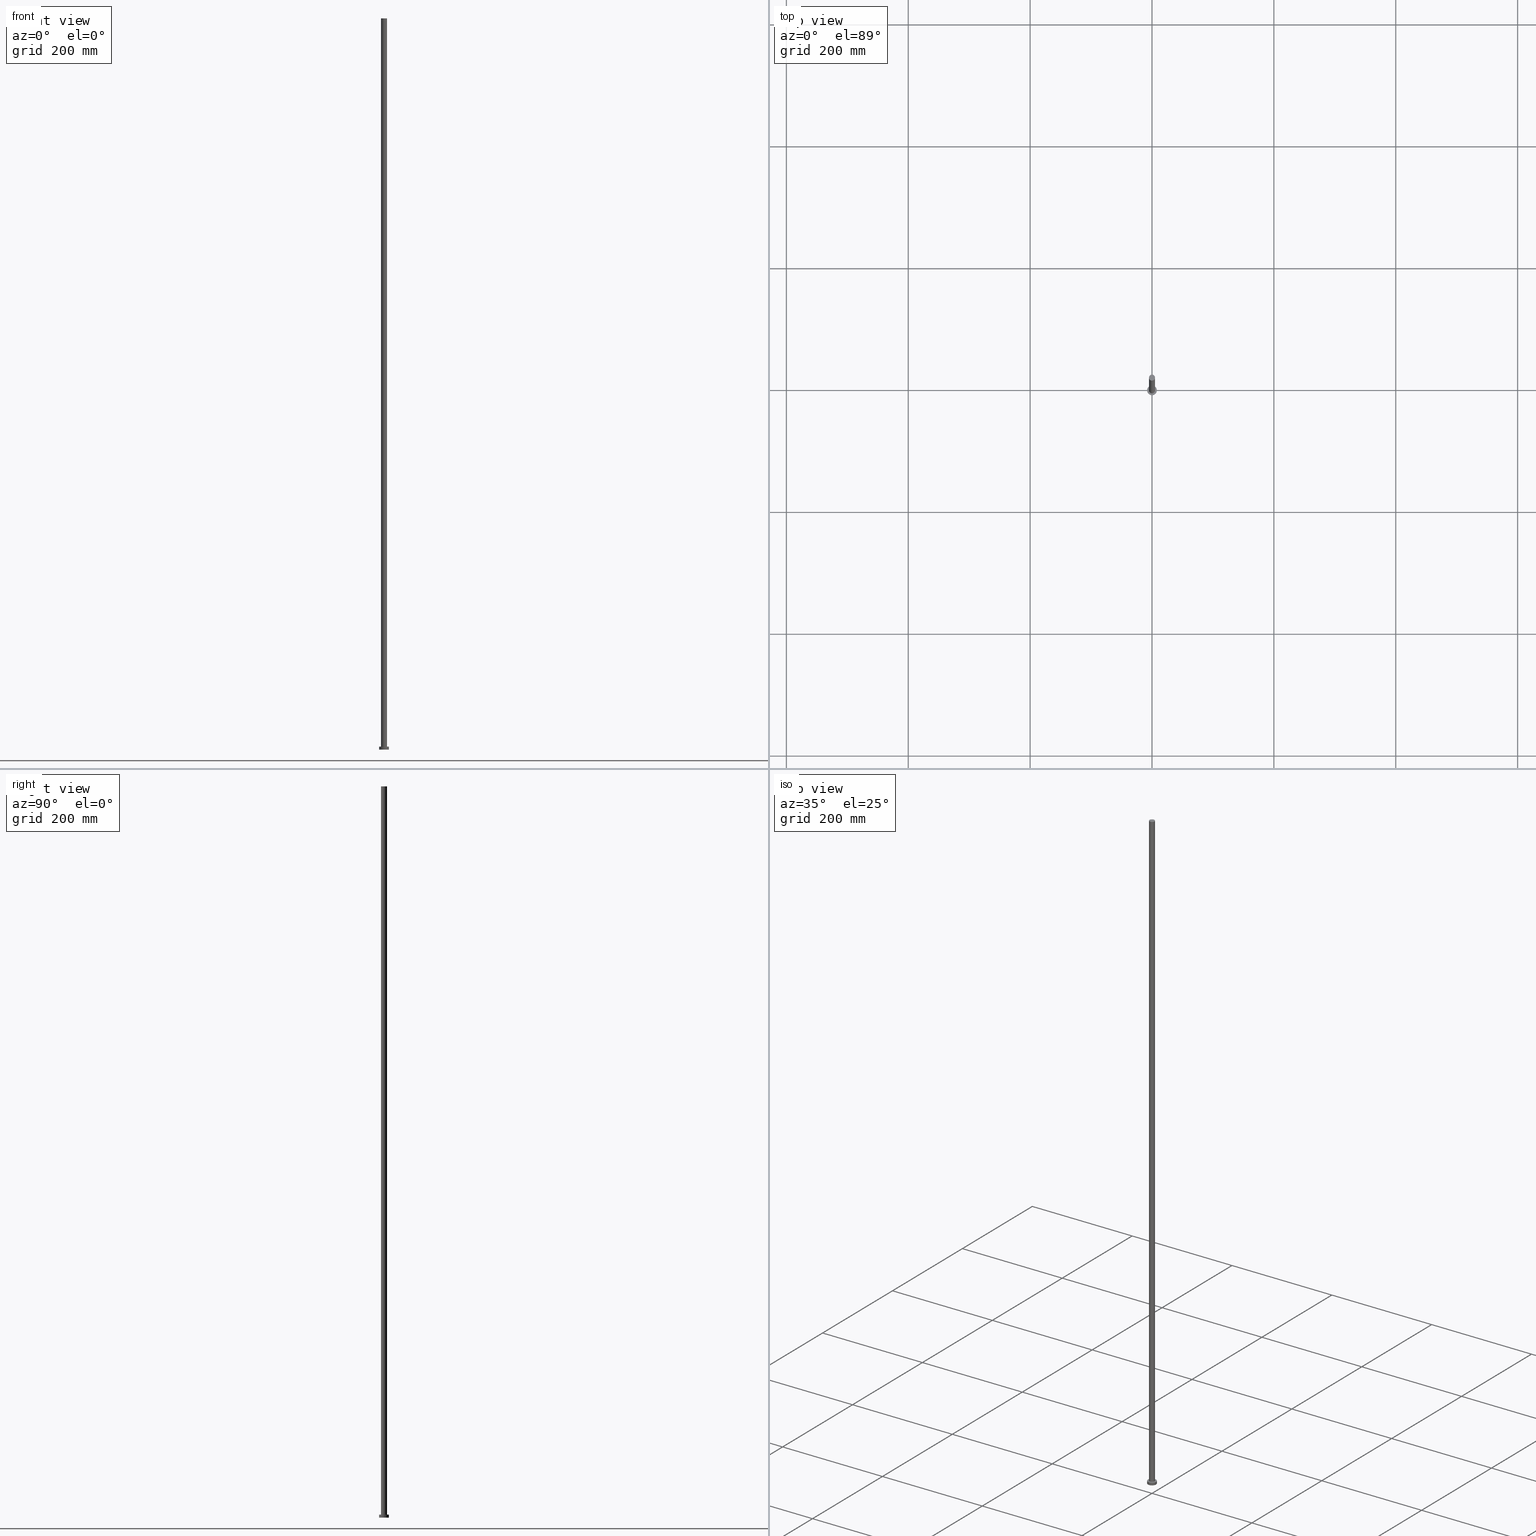
[diagram: canonical four-view strip — front | top / right | iso, engineering-drawing reading convention]
A machine part, canonical four-view strip (front | top / right | iso — engineering-drawing reading convention). The complete STEP part file that produces these views, byte-faithful:
ISO-10303-21;
HEADER;
FILE_DESCRIPTION (( 'STEP AP203' ),
    '1' );
FILE_NAME ('19fe.STEP',
    '2023-02-12T11:25:49',
    ( '' ),
    ( '' ),
    'SwSTEP 2.0',
    'SolidWorks 2019',
    '' );
FILE_SCHEMA (( 'CONFIG_CONTROL_DESIGN' ));
ENDSEC;

DATA;
#1 = FACE_OUTER_BOUND ( 'NONE', #224, .T. ) ;
#2 = APPROVAL_PERSON_ORGANIZATION ( #175, #5, #147 ) ;
#3 = PERSON_AND_ORGANIZATION ( #18, #225 ) ;
#4 = VERTEX_POINT ( 'NONE', #176 ) ;
#5 = APPROVAL ( #9, 'NEUR�EN�' ) ;
#6 = VERTEX_POINT ( 'NONE', #238 ) ;
#7 = ORIENTED_EDGE ( 'NONE', *, *, #94, .F. ) ;
#8 = ADVANCED_FACE ( 'NONE', ( #1 ), #153, .T. ) ;
#9 = APPROVAL_STATUS ( 'not_yet_approved' ) ;
#10 = DIRECTION ( 'NONE',  ( 0.000000000000000000, 0.000000000000000000, 1.000000000000000000 ) ) ;
#11 = PERSON_AND_ORGANIZATION ( #18, #225 ) ;
#12 = CARTESIAN_POINT ( 'NONE',  ( -8.000000000000000000, 0.000000000000000000, 0.000000000000000000 ) ) ;
#13 = PERSON_AND_ORGANIZATION ( #18, #225 ) ;
#14 = DIRECTION ( 'NONE',  ( -0.000000000000000000, -0.000000000000000000, -1.000000000000000000 ) ) ;
#15 = ORIENTED_EDGE ( 'NONE', *, *, #53, .T. ) ;
#16 = PERSON_AND_ORGANIZATION ( #18, #225 ) ;
#17 = CC_DESIGN_DATE_AND_TIME_ASSIGNMENT ( #134, #152, ( #239 ) ) ;
#18 = PERSON ( 'NEUR�EN�', 'NEUR�EN�', 'NEUR�EN�', ('NEUR�EN�'), ('NEUR�EN�'), ('NEUR�EN�') ) ;
#19 = CARTESIAN_POINT ( 'NONE',  ( -5.000000000000000888, 0.000000000000000000, 1200.000000000000000 ) ) ;
#20 = ORIENTED_EDGE ( 'NONE', *, *, #167, .F. ) ;
#21 = VECTOR ( 'NONE', #14, 1000.000000000000000 ) ;
#22 = CARTESIAN_POINT ( 'NONE',  ( 0.000000000000000000, 0.000000000000000000, 5.000000000000000000 ) ) ;
#23 = CC_DESIGN_SECURITY_CLASSIFICATION ( #239, ( #184 ) ) ;
#24 = DIRECTION ( 'NONE',  ( 1.000000000000000000, 0.000000000000000000, 0.000000000000000000 ) ) ;
#25 = DIRECTION ( 'NONE',  ( -1.000000000000000000, 0.000000000000000000, 0.000000000000000000 ) ) ;
#26 = DIRECTION ( 'NONE',  ( -0.000000000000000000, -0.000000000000000000, -1.000000000000000000 ) ) ;
#27 = ORIENTED_EDGE ( 'NONE', *, *, #158, .T. ) ;
#28 = CARTESIAN_POINT ( 'NONE',  ( 0.000000000000000000, 0.000000000000000000, 1200.000000000000000 ) ) ;
#29 = CARTESIAN_POINT ( 'NONE',  ( 0.000000000000000000, 0.000000000000000000, 5.000000000000000000 ) ) ;
#30 = EDGE_CURVE ( 'NONE', #40, #110, #120, .T. ) ;
#31 = CARTESIAN_POINT ( 'NONE',  ( 0.000000000000000000, 0.000000000000000000, 5.000000000000000000 ) ) ;
#32 =( LENGTH_UNIT ( ) NAMED_UNIT ( * ) SI_UNIT ( .MILLI., .METRE. ) );
#33 = EDGE_CURVE ( 'NONE', #100, #6, #201, .T. ) ;
#34 = CIRCLE ( 'NONE', #131, 5.000000000000000888 ) ;
#35 = EDGE_LOOP ( 'NONE', ( #42, #247, #138, #130 ) ) ;
#36 = PERSON_AND_ORGANIZATION ( #18, #225 ) ;
#37 = DIRECTION ( 'NONE',  ( 1.000000000000000000, 0.000000000000000000, 0.000000000000000000 ) ) ;
#38 = LINE ( 'NONE', #19, #121 ) ;
#39 = EDGE_LOOP ( 'NONE', ( #155, #102, #27, #194 ) ) ;
#40 = VERTEX_POINT ( 'NONE', #87 ) ;
#41 = PRODUCT ( '19fe', '19fe', '', ( #164 ) ) ;
#42 = ORIENTED_EDGE ( 'NONE', *, *, #151, .F. ) ;
#43 = EDGE_CURVE ( 'NONE', #40, #6, #192, .T. ) ;
#44 = AXIS2_PLACEMENT_3D ( 'NONE', #174, #240, #129 ) ;
#45 = EDGE_CURVE ( 'NONE', #246, #160, #34, .T. ) ;
#46 = DIRECTION ( 'NONE',  ( 1.000000000000000000, 0.000000000000000000, -0.000000000000000000 ) ) ;
#47 = DIRECTION ( 'NONE',  ( 1.000000000000000000, 0.000000000000000000, 0.000000000000000000 ) ) ;
#48 = CARTESIAN_POINT ( 'NONE',  ( 0.000000000000000000, 0.000000000000000000, 0.000000000000000000 ) ) ;
#49 = LINE ( 'NONE', #144, #165 ) ;
#50 = COORDINATED_UNIVERSAL_TIME_OFFSET ( 1, 0, .AHEAD. ) ;
#51 = PERSON_AND_ORGANIZATION_ROLE ( 'design_supplier' ) ;
#52 = FACE_OUTER_BOUND ( 'NONE', #58, .T. ) ;
#53 = EDGE_CURVE ( 'NONE', #110, #100, #49, .T. ) ;
#54 = APPLICATION_CONTEXT ( 'configuration controlled 3d designs of mechanical parts and assemblies' ) ;
#55 = CC_DESIGN_PERSON_AND_ORGANIZATION_ASSIGNMENT ( #13, #173, ( #41 ) ) ;
#56 = CALENDAR_DATE ( 2023, 12, 2 ) ;
#57 = AXIS2_PLACEMENT_3D ( 'NONE', #64, #140, #185 ) ;
#58 = EDGE_LOOP ( 'NONE', ( #219, #115 ) ) ;
#59 = DIRECTION ( 'NONE',  ( 0.000000000000000000, 0.000000000000000000, 1.000000000000000000 ) ) ;
#60 = ORIENTED_EDGE ( 'NONE', *, *, #45, .T. ) ;
#61 = EDGE_LOOP ( 'NONE', ( #199, #135 ) ) ;
#62 = CC_DESIGN_APPROVAL ( #161, ( #239 ) ) ;
#63 = APPLICATION_PROTOCOL_DEFINITION ( 'international standard', 'config_control_design', 1994, #54 ) ;
#64 = CARTESIAN_POINT ( 'NONE',  ( 0.000000000000000000, 0.000000000000000000, 0.000000000000000000 ) ) ;
#65 = DIRECTION ( 'NONE',  ( 0.000000000000000000, 0.000000000000000000, 1.000000000000000000 ) ) ;
#66 = DATE_AND_TIME ( #196, #197 ) ;
#67 = CARTESIAN_POINT ( 'NONE',  ( 0.000000000000000000, 0.000000000000000000, 5.000000000000000000 ) ) ;
#68 = AXIS2_PLACEMENT_3D ( 'NONE', #169, #65, #46 ) ;
#69 = DIRECTION ( 'NONE',  ( -0.000000000000000000, -0.000000000000000000, -1.000000000000000000 ) ) ;
#70 = PERSON_AND_ORGANIZATION_ROLE ( 'creator' ) ;
#71 = DIRECTION ( 'NONE',  ( 1.000000000000000000, 0.000000000000000000, 0.000000000000000000 ) ) ;
#72 = CC_DESIGN_PERSON_AND_ORGANIZATION_ASSIGNMENT ( #36, #157, ( #184 ) ) ;
#73 = CYLINDRICAL_SURFACE ( 'NONE', #204, 8.000000000000000000 ) ;
#74 = SECURITY_CLASSIFICATION_LEVEL ( 'unclassified' ) ;
#75 = DIRECTION ( 'NONE',  ( -0.000000000000000000, -0.000000000000000000, -1.000000000000000000 ) ) ;
#76 =( GEOMETRIC_REPRESENTATION_CONTEXT ( 3 ) GLOBAL_UNCERTAINTY_ASSIGNED_CONTEXT ( ( #105 ) ) GLOBAL_UNIT_ASSIGNED_CONTEXT ( ( #32, #97, #99 ) ) REPRESENTATION_CONTEXT ( 'NONE', 'WORKASPACE' ) );
#77 = PERSON_AND_ORGANIZATION ( #18, #225 ) ;
#78 = LOCAL_TIME ( 12, 25, 49.00000000000000000, #117 ) ;
#79 = ORIENTED_EDGE ( 'NONE', *, *, #43, .F. ) ;
#80 = EDGE_LOOP ( 'NONE', ( #79, #7, #15, #182 ) ) ;
#81 = CARTESIAN_POINT ( 'NONE',  ( 0.000000000000000000, 0.000000000000000000, 5.000000000000000000 ) ) ;
#82 = AXIS2_PLACEMENT_3D ( 'NONE', #103, #122, #84 ) ;
#83 = PRODUCT_DEFINITION ( 'NEZN�M�', '', #184, #230 ) ;
#84 = DIRECTION ( 'NONE',  ( 1.000000000000000000, 0.000000000000000000, 0.000000000000000000 ) ) ;
#85 = LOCAL_TIME ( 12, 25, 49.00000000000000000, #106 ) ;
#86 = PLANE ( 'NONE',  #68 ) ;
#87 = CARTESIAN_POINT ( 'NONE',  ( 8.000000000000000000, 9.797174393178825657E-16, 5.000000000000000000 ) ) ;
#88 = APPROVAL_ROLE ( '' ) ;
#89 = FACE_OUTER_BOUND ( 'NONE', #35, .T. ) ;
#90 = EDGE_CURVE ( 'NONE', #98, #4, #228, .T. ) ;
#91 = ADVANCED_BREP_SHAPE_REPRESENTATION ( '19fe', ( #139, #57 ), #76 ) ;
#92 = CARTESIAN_POINT ( 'NONE',  ( -8.000000000000000000, 0.000000000000000000, 5.000000000000000000 ) ) ;
#93 = AXIS2_PLACEMENT_3D ( 'NONE', #236, #213, #235 ) ;
#94 = EDGE_CURVE ( 'NONE', #110, #40, #162, .T. ) ;
#95 = CARTESIAN_POINT ( 'NONE',  ( 0.000000000000000000, 0.000000000000000000, 1200.000000000000000 ) ) ;
#96 = DIRECTION ( 'NONE',  ( 0.000000000000000000, 0.000000000000000000, 1.000000000000000000 ) ) ;
#97 =( NAMED_UNIT ( * ) PLANE_ANGLE_UNIT ( ) SI_UNIT ( $, .RADIAN. ) );
#98 = VERTEX_POINT ( 'NONE', #109 ) ;
#99 =( NAMED_UNIT ( * ) SI_UNIT ( $, .STERADIAN. ) SOLID_ANGLE_UNIT ( ) );
#100 = VERTEX_POINT ( 'NONE', #12 ) ;
#101 = APPROVAL_ROLE ( '' ) ;
#102 = ORIENTED_EDGE ( 'NONE', *, *, #43, .T. ) ;
#103 = CARTESIAN_POINT ( 'NONE',  ( 0.000000000000000000, 0.000000000000000000, 0.000000000000000000 ) ) ;
#104 = PRODUCT_DEFINITION_SHAPE ( 'NONE', 'NONE',  #83 ) ;
#105 = UNCERTAINTY_MEASURE_WITH_UNIT (LENGTH_MEASURE( 1.000000000000000082E-05 ), #32, 'distance_accuracy_value', 'NONE');
#106 = COORDINATED_UNIVERSAL_TIME_OFFSET ( 1, 0, .AHEAD. ) ;
#107 = ADVANCED_FACE ( 'NONE', ( #89 ), #172, .T. ) ;
#108 = PERSON_AND_ORGANIZATION ( #18, #225 ) ;
#109 = CARTESIAN_POINT ( 'NONE',  ( -5.000000000000000888, 0.000000000000000000, 1200.000000000000000 ) ) ;
#110 = VERTEX_POINT ( 'NONE', #92 ) ;
#111 = DIRECTION ( 'NONE',  ( 1.000000000000000000, 0.000000000000000000, -0.000000000000000000 ) ) ;
#112 = DIRECTION ( 'NONE',  ( -0.000000000000000000, -0.000000000000000000, -1.000000000000000000 ) ) ;
#113 = CIRCLE ( 'NONE', #250, 5.000000000000000888 ) ;
#114 = DIRECTION ( 'NONE',  ( 1.000000000000000000, 0.000000000000000000, -0.000000000000000000 ) ) ;
#115 = ORIENTED_EDGE ( 'NONE', *, *, #151, .T. ) ;
#116 = FACE_OUTER_BOUND ( 'NONE', #80, .T. ) ;
#117 = COORDINATED_UNIVERSAL_TIME_OFFSET ( 1, 0, .AHEAD. ) ;
#118 = ORIENTED_EDGE ( 'NONE', *, *, #119, .F. ) ;
#119 = EDGE_CURVE ( 'NONE', #4, #160, #148, .T. ) ;
#120 = CIRCLE ( 'NONE', #177, 8.000000000000000000 ) ;
#121 = VECTOR ( 'NONE', #75, 1000.000000000000000 ) ;
#122 = DIRECTION ( 'NONE',  ( 0.000000000000000000, 0.000000000000000000, 1.000000000000000000 ) ) ;
#123 = CC_DESIGN_PERSON_AND_ORGANIZATION_ASSIGNMENT ( #3, #51, ( #184 ) ) ;
#124 = CIRCLE ( 'NONE', #82, 8.000000000000000000 ) ;
#125 = PLANE ( 'NONE',  #132 ) ;
#126 = APPLICATION_PROTOCOL_DEFINITION ( 'international standard', 'config_control_design', 1994, #149 ) ;
#127 = DIRECTION ( 'NONE',  ( 0.000000000000000000, 0.000000000000000000, 1.000000000000000000 ) ) ;
#128 = CALENDAR_DATE ( 2023, 12, 2 ) ;
#129 = DIRECTION ( 'NONE',  ( -1.000000000000000000, 0.000000000000000000, 0.000000000000000000 ) ) ;
#130 = ORIENTED_EDGE ( 'NONE', *, *, #253, .F. ) ;
#131 = AXIS2_PLACEMENT_3D ( 'NONE', #67, #214, #237 ) ;
#132 = AXIS2_PLACEMENT_3D ( 'NONE', #48, #96, #111 ) ;
#133 = APPROVAL_PERSON_ORGANIZATION ( #108, #179, #88 ) ;
#134 = DATE_AND_TIME ( #56, #137 ) ;
#135 = ORIENTED_EDGE ( 'NONE', *, *, #158, .F. ) ;
#136 = PRODUCT_RELATED_PRODUCT_CATEGORY ( 'detail', '', ( #41 ) ) ;
#137 = LOCAL_TIME ( 12, 25, 49.00000000000000000, #202 ) ;
#138 = ORIENTED_EDGE ( 'NONE', *, *, #167, .T. ) ;
#139 = MANIFOLD_SOLID_BREP ( 'P�idat vysunut�m3', #242 ) ;
#140 = DIRECTION ( 'NONE',  ( 0.000000000000000000, 0.000000000000000000, 1.000000000000000000 ) ) ;
#141 = AXIS2_PLACEMENT_3D ( 'NONE', #28, #112, #195 ) ;
#142 = APPROVAL_PERSON_ORGANIZATION ( #77, #161, #101 ) ;
#143 = COORDINATED_UNIVERSAL_TIME_OFFSET ( 1, 0, .AHEAD. ) ;
#144 = CARTESIAN_POINT ( 'NONE',  ( -8.000000000000000000, 0.000000000000000000, 5.000000000000000000 ) ) ;
#145 = DIRECTION ( 'NONE',  ( 0.000000000000000000, 0.000000000000000000, 1.000000000000000000 ) ) ;
#146 = APPROVAL_DATE_TIME ( #170, #179 ) ;
#147 = APPROVAL_ROLE ( '' ) ;
#148 = LINE ( 'NONE', #245, #21 ) ;
#149 = APPLICATION_CONTEXT ( 'configuration controlled 3d designs of mechanical parts and assemblies' ) ;
#150 = FACE_OUTER_BOUND ( 'NONE', #39, .T. ) ;
#151 = EDGE_CURVE ( 'NONE', #4, #98, #180, .T. ) ;
#152 = DATE_TIME_ROLE ( 'classification_date' ) ;
#153 = CYLINDRICAL_SURFACE ( 'NONE', #44, 5.000000000000000888 ) ;
#154 = APPROVAL_DATE_TIME ( #200, #161 ) ;
#155 = ORIENTED_EDGE ( 'NONE', *, *, #30, .F. ) ;
#156 = ADVANCED_FACE ( 'NONE', ( #116 ), #207, .T. ) ;
#157 = PERSON_AND_ORGANIZATION_ROLE ( 'creator' ) ;
#158 = EDGE_CURVE ( 'NONE', #6, #100, #124, .T. ) ;
#159 = EDGE_LOOP ( 'NONE', ( #183, #226 ) ) ;
#160 = VERTEX_POINT ( 'NONE', #215 ) ;
#161 = APPROVAL ( #244, 'NEUR�EN�' ) ;
#162 = CIRCLE ( 'NONE', #248, 8.000000000000000000 ) ;
#163 = ADVANCED_FACE ( 'NONE', ( #52 ), #223, .T. ) ;
#164 = MECHANICAL_CONTEXT ( 'NONE', #54, 'mechanical' ) ;
#165 = VECTOR ( 'NONE', #69, 1000.000000000000000 ) ;
#166 = DIRECTION ( 'NONE',  ( -0.000000000000000000, -0.000000000000000000, -1.000000000000000000 ) ) ;
#167 = EDGE_CURVE ( 'NONE', #160, #246, #113, .T. ) ;
#168 = CARTESIAN_POINT ( 'NONE',  ( 0.000000000000000000, 0.000000000000000000, 0.000000000000000000 ) ) ;
#169 = CARTESIAN_POINT ( 'NONE',  ( 0.000000000000000000, 0.000000000000000000, 5.000000000000000000 ) ) ;
#170 = DATE_AND_TIME ( #187, #85 ) ;
#171 = CARTESIAN_POINT ( 'NONE',  ( -5.000000000000000888, 0.000000000000000000, 5.000000000000000000 ) ) ;
#172 = CYLINDRICAL_SURFACE ( 'NONE', #141, 5.000000000000000888 ) ;
#173 = PERSON_AND_ORGANIZATION_ROLE ( 'design_owner' ) ;
#174 = CARTESIAN_POINT ( 'NONE',  ( 0.000000000000000000, 0.000000000000000000, 1200.000000000000000 ) ) ;
#175 = PERSON_AND_ORGANIZATION ( #18, #225 ) ;
#176 = CARTESIAN_POINT ( 'NONE',  ( 5.000000000000000888, 6.123233995736767268E-16, 1200.000000000000000 ) ) ;
#177 = AXIS2_PLACEMENT_3D ( 'NONE', #31, #127, #188 ) ;
#178 = DIRECTION ( 'NONE',  ( -0.000000000000000000, -0.000000000000000000, -1.000000000000000000 ) ) ;
#179 = APPROVAL ( #212, 'NEUR�EN�' ) ;
#180 = CIRCLE ( 'NONE', #205, 5.000000000000000888 ) ;
#181 = ORIENTED_EDGE ( 'NONE', *, *, #253, .T. ) ;
#182 = ORIENTED_EDGE ( 'NONE', *, *, #33, .T. ) ;
#183 = ORIENTED_EDGE ( 'NONE', *, *, #94, .T. ) ;
#184 = PRODUCT_DEFINITION_FORMATION_WITH_SPECIFIED_SOURCE ( 'LIBOVOLN�', '', #41, .NOT_KNOWN. ) ;
#185 = DIRECTION ( 'NONE',  ( 1.000000000000000000, 0.000000000000000000, 0.000000000000000000 ) ) ;
#186 = FACE_OUTER_BOUND ( 'NONE', #159, .T. ) ;
#187 = CALENDAR_DATE ( 2023, 12, 2 ) ;
#188 = DIRECTION ( 'NONE',  ( 1.000000000000000000, 0.000000000000000000, 0.000000000000000000 ) ) ;
#189 = FACE_BOUND ( 'NONE', #203, .T. ) ;
#190 = CC_DESIGN_PERSON_AND_ORGANIZATION_ASSIGNMENT ( #16, #217, ( #239 ) ) ;
#191 = DATE_AND_TIME ( #210, #206 ) ;
#192 = LINE ( 'NONE', #252, #232 ) ;
#193 = CC_DESIGN_APPROVAL ( #179, ( #184 ) ) ;
#194 = ORIENTED_EDGE ( 'NONE', *, *, #53, .F. ) ;
#195 = DIRECTION ( 'NONE',  ( -1.000000000000000000, 0.000000000000000000, 0.000000000000000000 ) ) ;
#196 = CALENDAR_DATE ( 2023, 12, 2 ) ;
#197 = LOCAL_TIME ( 12, 25, 49.00000000000000000, #50 ) ;
#198 = ADVANCED_FACE ( 'NONE', ( #189, #186 ), #86, .T. ) ;
#199 = ORIENTED_EDGE ( 'NONE', *, *, #33, .F. ) ;
#200 = DATE_AND_TIME ( #128, #78 ) ;
#201 = CIRCLE ( 'NONE', #208, 8.000000000000000000 ) ;
#202 = COORDINATED_UNIVERSAL_TIME_OFFSET ( 1, 0, .AHEAD. ) ;
#203 = EDGE_LOOP ( 'NONE', ( #243, #20 ) ) ;
#204 = AXIS2_PLACEMENT_3D ( 'NONE', #29, #178, #25 ) ;
#205 = AXIS2_PLACEMENT_3D ( 'NONE', #241, #59, #37 ) ;
#206 = LOCAL_TIME ( 12, 25, 49.00000000000000000, #143 ) ;
#207 = CYLINDRICAL_SURFACE ( 'NONE', #249, 8.000000000000000000 ) ;
#208 = AXIS2_PLACEMENT_3D ( 'NONE', #168, #10, #71 ) ;
#209 = ADVANCED_FACE ( 'NONE', ( #229 ), #125, .F. ) ;
#210 = CALENDAR_DATE ( 2023, 12, 2 ) ;
#211 = CC_DESIGN_DATE_AND_TIME_ASSIGNMENT ( #191, #231, ( #83 ) ) ;
#212 = APPROVAL_STATUS ( 'not_yet_approved' ) ;
#213 = DIRECTION ( 'NONE',  ( 0.000000000000000000, 0.000000000000000000, 1.000000000000000000 ) ) ;
#214 = DIRECTION ( 'NONE',  ( 0.000000000000000000, 0.000000000000000000, 1.000000000000000000 ) ) ;
#215 = CARTESIAN_POINT ( 'NONE',  ( 5.000000000000000888, 6.123233995736767268E-16, 5.000000000000000000 ) ) ;
#216 = SHAPE_DEFINITION_REPRESENTATION ( #104, #91 ) ;
#217 = PERSON_AND_ORGANIZATION_ROLE ( 'classification_officer' ) ;
#218 = DIRECTION ( 'NONE',  ( 0.000000000000000000, 0.000000000000000000, 1.000000000000000000 ) ) ;
#219 = ORIENTED_EDGE ( 'NONE', *, *, #90, .T. ) ;
#220 = DIRECTION ( 'NONE',  ( -1.000000000000000000, 0.000000000000000000, 0.000000000000000000 ) ) ;
#221 = ORIENTED_EDGE ( 'NONE', *, *, #90, .F. ) ;
#222 = ADVANCED_FACE ( 'NONE', ( #150 ), #73, .T. ) ;
#223 = PLANE ( 'NONE',  #233 ) ;
#224 = EDGE_LOOP ( 'NONE', ( #118, #221, #181, #60 ) ) ;
#225 = ORGANIZATION ( 'NEUR�EN�', 'NEUR�EN�', '' ) ;
#226 = ORIENTED_EDGE ( 'NONE', *, *, #30, .T. ) ;
#227 = CC_DESIGN_PERSON_AND_ORGANIZATION_ASSIGNMENT ( #11, #70, ( #83 ) ) ;
#228 = CIRCLE ( 'NONE', #93, 5.000000000000000888 ) ;
#229 = FACE_OUTER_BOUND ( 'NONE', #61, .T. ) ;
#230 = DESIGN_CONTEXT ( 'detailed design', #149, 'design' ) ;
#231 = DATE_TIME_ROLE ( 'creation_date' ) ;
#232 = VECTOR ( 'NONE', #26, 1000.000000000000000 ) ;
#233 = AXIS2_PLACEMENT_3D ( 'NONE', #95, #218, #114 ) ;
#234 = DIRECTION ( 'NONE',  ( 0.000000000000000000, 0.000000000000000000, 1.000000000000000000 ) ) ;
#235 = DIRECTION ( 'NONE',  ( 1.000000000000000000, 0.000000000000000000, 0.000000000000000000 ) ) ;
#236 = CARTESIAN_POINT ( 'NONE',  ( 0.000000000000000000, 0.000000000000000000, 1200.000000000000000 ) ) ;
#237 = DIRECTION ( 'NONE',  ( 1.000000000000000000, 0.000000000000000000, 0.000000000000000000 ) ) ;
#238 = CARTESIAN_POINT ( 'NONE',  ( 8.000000000000000000, 9.797174393178825657E-16, 0.000000000000000000 ) ) ;
#239 = SECURITY_CLASSIFICATION ( '', '', #74 ) ;
#240 = DIRECTION ( 'NONE',  ( -0.000000000000000000, -0.000000000000000000, -1.000000000000000000 ) ) ;
#241 = CARTESIAN_POINT ( 'NONE',  ( 0.000000000000000000, 0.000000000000000000, 1200.000000000000000 ) ) ;
#242 = CLOSED_SHELL ( 'NONE', ( #107, #222, #156, #198, #209, #8, #163 ) ) ;
#243 = ORIENTED_EDGE ( 'NONE', *, *, #45, .F. ) ;
#244 = APPROVAL_STATUS ( 'not_yet_approved' ) ;
#245 = CARTESIAN_POINT ( 'NONE',  ( 5.000000000000000888, 6.123233995736767268E-16, 1200.000000000000000 ) ) ;
#246 = VERTEX_POINT ( 'NONE', #171 ) ;
#247 = ORIENTED_EDGE ( 'NONE', *, *, #119, .T. ) ;
#248 = AXIS2_PLACEMENT_3D ( 'NONE', #254, #145, #47 ) ;
#249 = AXIS2_PLACEMENT_3D ( 'NONE', #22, #166, #220 ) ;
#250 = AXIS2_PLACEMENT_3D ( 'NONE', #81, #234, #24 ) ;
#251 = CC_DESIGN_APPROVAL ( #5, ( #83 ) ) ;
#252 = CARTESIAN_POINT ( 'NONE',  ( 8.000000000000000000, 9.797174393178825657E-16, 5.000000000000000000 ) ) ;
#253 = EDGE_CURVE ( 'NONE', #98, #246, #38, .T. ) ;
#254 = CARTESIAN_POINT ( 'NONE',  ( 0.000000000000000000, 0.000000000000000000, 5.000000000000000000 ) ) ;
#255 = APPROVAL_DATE_TIME ( #66, #5 ) ;
ENDSEC;
END-ISO-10303-21;
